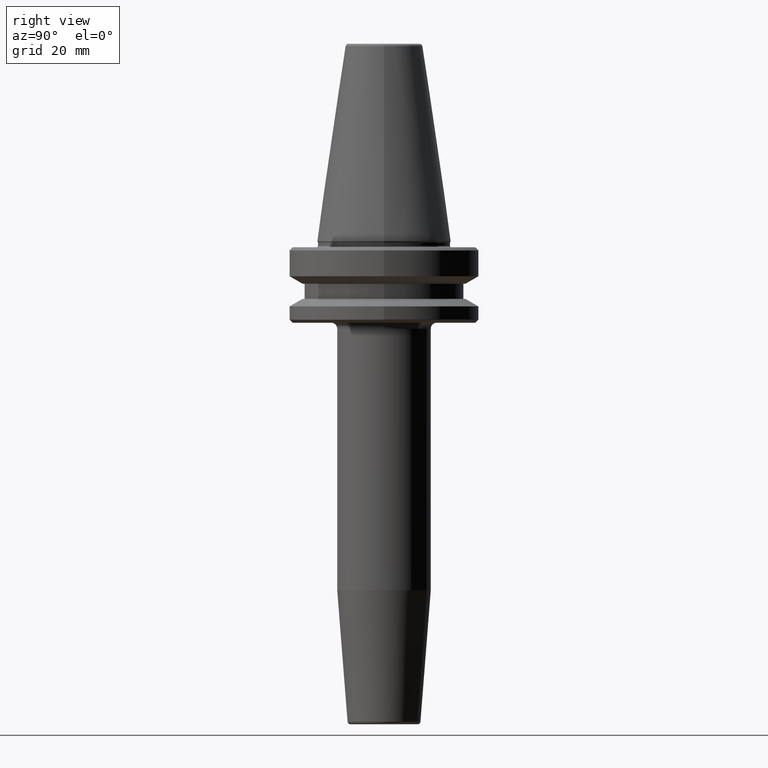
[diagram: clean part render]
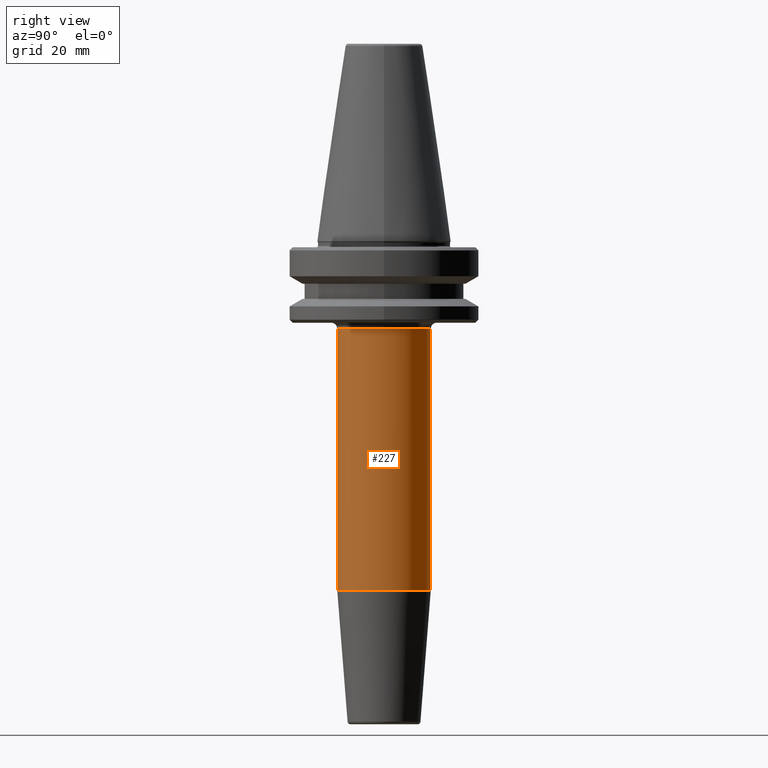
[diagram: same view with one face highlighted and labeled with its STEP entity id]
A machine part, right view. The second image highlights one B-rep face of the part: STEP entity #227.
In plain terms, the highlighted cylindrical surface (partial cylindrical patch) has radius 15.5 mm, axis along (-0, 0, -1).
Its self-contained STEP definition (entity closure, byte-faithful):
#18 = ORIENTED_EDGE ( 'NONE', *, *, #823, .F. ) ;
#20 = AXIS2_PLACEMENT_3D ( 'NONE', #1234, #635, #50 ) ;
#50 = DIRECTION ( 'NONE',  ( 0.0000000000000000000, 1.000000000000000000, 0.0000000000000000000 ) ) ;
#53 = VERTEX_POINT ( 'NONE', #437 ) ;
#81 = CARTESIAN_POINT ( 'NONE',  ( 1.898202538678396800E-015, 15.50000000000000000, -115.5282834233806400 ) ) ;
#88 = EDGE_CURVE ( 'NONE', #763, #53, #154, .T. ) ;
#105 = DIRECTION ( 'NONE',  ( 0.0000000000000000000, 0.0000000000000000000, -1.000000000000000000 ) ) ;
#136 = CARTESIAN_POINT ( 'NONE',  ( 1.898202538678397200E-015, -15.49999999999999500, -28.99999999999999600 ) ) ;
#144 = CARTESIAN_POINT ( 'NONE',  ( 0.0000000000000000000, 1.510090789926056700E-016, -28.99999999999999600 ) ) ;
#154 = LINE ( 'NONE', #585, #1162 ) ;
#165 = ORIENTED_EDGE ( 'NONE', *, *, #88, .T. ) ;
#185 = ORIENTED_EDGE ( 'NONE', *, *, #360, .F. ) ;
#207 = ORIENTED_EDGE ( 'NONE', *, *, #286, .T. ) ;
#227 = ADVANCED_FACE ( 'NONE', ( #288 ), #786, .T. ) ;
#250 = DIRECTION ( 'NONE',  ( -1.000000000000000000, 0.0000000000000000000, 0.0000000000000000000 ) ) ;
#277 = CIRCLE ( 'NONE', #1160, 15.49999999999999500 ) ;
#286 = EDGE_CURVE ( 'NONE', #643, #1006, #1107, .T. ) ;
#288 = FACE_OUTER_BOUND ( 'NONE', #628, .T. ) ;
#301 = AXIS2_PLACEMENT_3D ( 'NONE', #906, #105, #413 ) ;
#360 = EDGE_CURVE ( 'NONE', #643, #1093, #782, .T. ) ;
#364 = CARTESIAN_POINT ( 'NONE',  ( 15.49999999999999500, 2.171676297585737800E-015, -28.99999999999999600 ) ) ;
#413 = DIRECTION ( 'NONE',  ( -1.000000000000000000, 0.0000000000000000000, 0.0000000000000000000 ) ) ;
#437 = CARTESIAN_POINT ( 'NONE',  ( 0.0000000000000000000, -15.49999999999998600, -115.5282834233806400 ) ) ;
#485 = VECTOR ( 'NONE', #639, 1000.000000000000000 ) ;
#509 = CARTESIAN_POINT ( 'NONE',  ( 0.0000000000000000000, 15.50000000000000500, -160.0000000000000000 ) ) ;
#585 = CARTESIAN_POINT ( 'NONE',  ( 1.898202538678396800E-015, -15.49999999999998400, -160.0000000000000000 ) ) ;
#628 = EDGE_LOOP ( 'NONE', ( #207, #1158, #165, #18, #185 ) ) ;
#635 = DIRECTION ( 'NONE',  ( -0.0000000000000000000, 7.550453949630298400E-017, -1.000000000000000000 ) ) ;
#639 = DIRECTION ( 'NONE',  ( -0.0000000000000000000, 7.550453949630298400E-017, -1.000000000000000000 ) ) ;
#643 = VERTEX_POINT ( 'NONE', #807 ) ;
#749 = DIRECTION ( 'NONE',  ( -0.0000000000000000000, 7.550453949630298400E-017, -1.000000000000000000 ) ) ;
#763 = VERTEX_POINT ( 'NONE', #136 ) ;
#782 = LINE ( 'NONE', #509, #485 ) ;
#786 = CYLINDRICAL_SURFACE ( 'NONE', #1252, 15.49999999999999500 ) ;
#807 = CARTESIAN_POINT ( 'NONE',  ( 0.0000000000000000000, 15.49999999999999500, -28.99999999999999600 ) ) ;
#814 = EDGE_CURVE ( 'NONE', #1006, #763, #277, .T. ) ;
#823 = EDGE_CURVE ( 'NONE', #1093, #53, #971, .T. ) ;
#835 = DIRECTION ( 'NONE',  ( 0.0000000000000000000, 0.0000000000000000000, -1.000000000000000000 ) ) ;
#865 = DIRECTION ( 'NONE',  ( -0.0000000000000000000, 7.550453949630298400E-017, -1.000000000000000000 ) ) ;
#906 = CARTESIAN_POINT ( 'NONE',  ( 0.0000000000000000000, 1.510090789926056700E-016, -28.99999999999999600 ) ) ;
#971 = CIRCLE ( 'NONE', #20, 15.49999999999999300 ) ;
#1006 = VERTEX_POINT ( 'NONE', #364 ) ;
#1073 = CARTESIAN_POINT ( 'NONE',  ( 0.0000000000000000000, 1.004210375300829800E-014, -160.0000000000000000 ) ) ;
#1093 = VERTEX_POINT ( 'NONE', #81 ) ;
#1107 = CIRCLE ( 'NONE', #301, 15.49999999999999500 ) ;
#1158 = ORIENTED_EDGE ( 'NONE', *, *, #814, .T. ) ;
#1160 = AXIS2_PLACEMENT_3D ( 'NONE', #144, #835, #250 ) ;
#1162 = VECTOR ( 'NONE', #749, 1000.000000000000000 ) ;
#1234 = CARTESIAN_POINT ( 'NONE',  ( 0.0000000000000000000, 6.684287272280548800E-015, -115.5282834233806400 ) ) ;
#1252 = AXIS2_PLACEMENT_3D ( 'NONE', #1073, #865, #1270 ) ;
#1270 = DIRECTION ( 'NONE',  ( 0.0000000000000000000, 1.000000000000000000, 0.0000000000000000000 ) ) ;